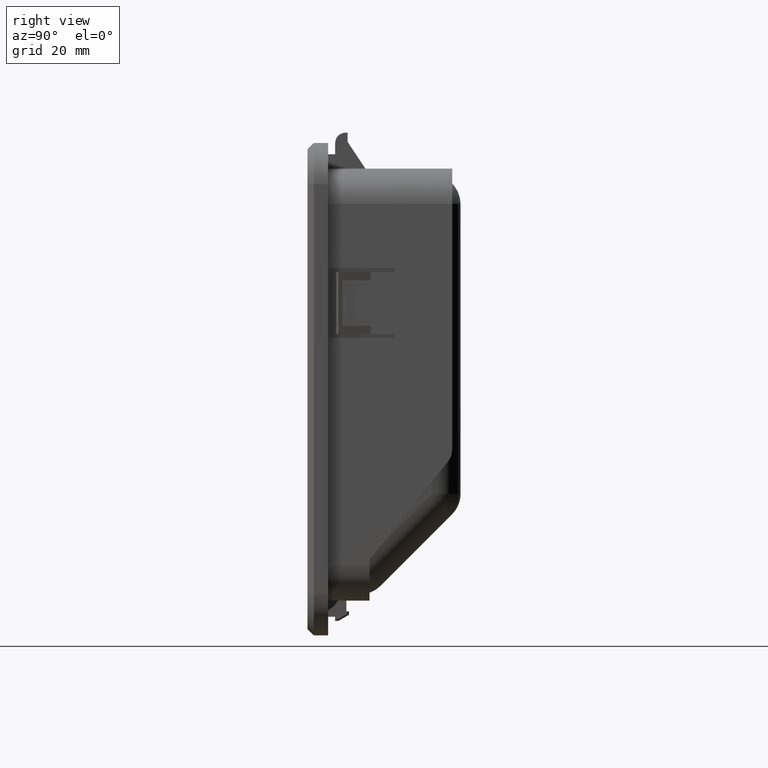
[diagram: clean part render]
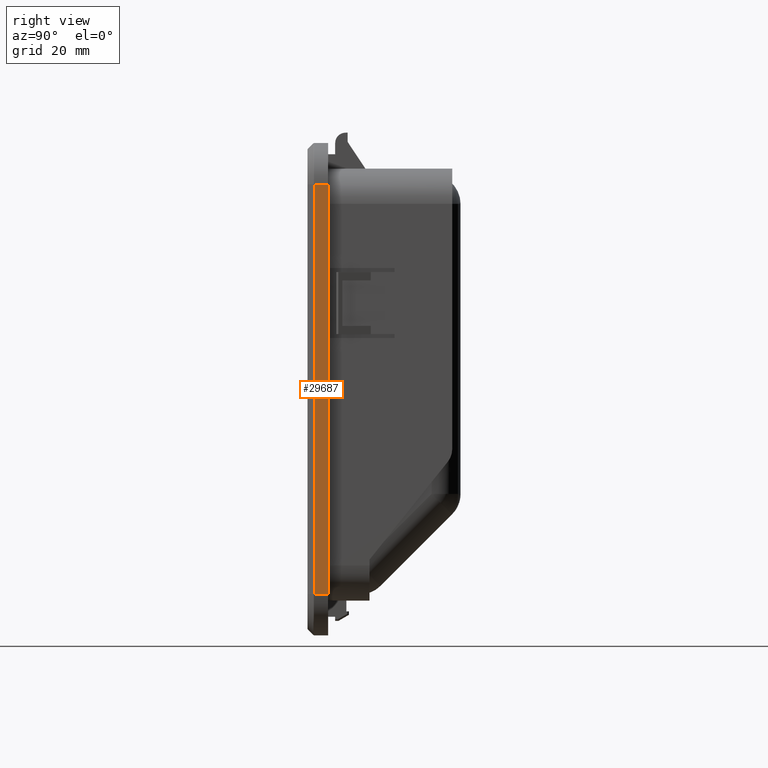
[diagram: same view with one face highlighted and labeled with its STEP entity id]
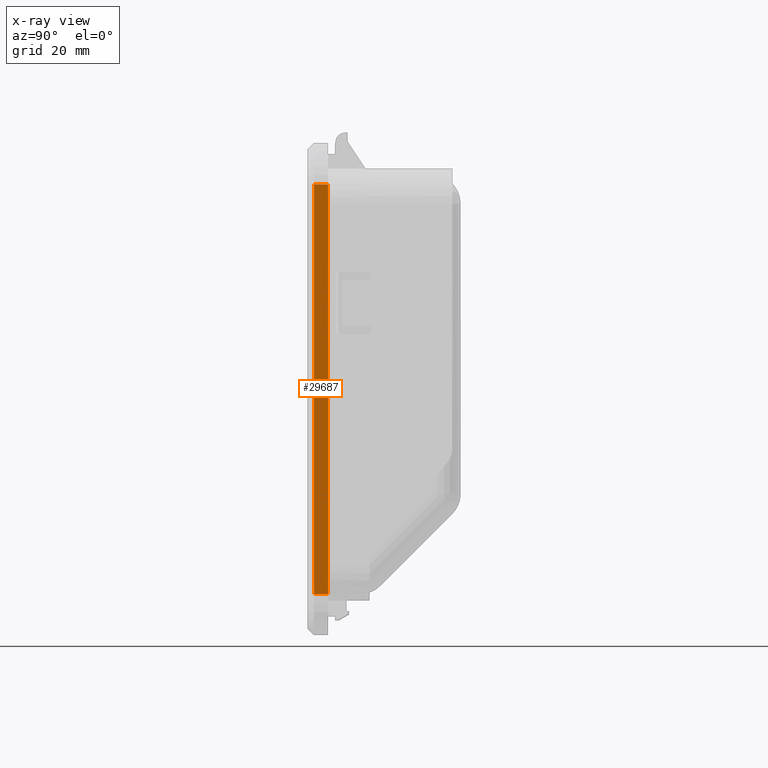
[diagram: x-ray of the same camera — body ghosted, the highlighted face saturated]
A machine part, right view. The second image highlights one B-rep face of the part: STEP entity #29687.
The next image is the same camera in x-ray: the body ghosted, the highlighted face saturated — about 0% of this face is hidden behind the body in this view.
In plain terms, the highlighted planar face has unit normal (1, 0, 0).
Its self-contained STEP definition (entity closure, byte-faithful):
#267 = VECTOR ( 'NONE', #32880, 1000.000000000000000 ) ;
#640 = DIRECTION ( 'NONE',  ( -0.0000000000000000000, -0.0000000000000000000, 1.000000000000000000 ) ) ;
#650 = VERTEX_POINT ( 'NONE', #24888 ) ;
#1031 = VECTOR ( 'NONE', #640, 1000.000000000000000 ) ;
#2228 = LINE ( 'NONE', #29573, #18440 ) ;
#5974 = ORIENTED_EDGE ( 'NONE', *, *, #13029, .F. ) ;
#6869 = CARTESIAN_POINT ( 'NONE',  ( 61.49999999990000500, 1.624264068710000300, -0.5000000000000000000 ) ) ;
#7951 = VERTEX_POINT ( 'NONE', #40925 ) ;
#8398 = ORIENTED_EDGE ( 'NONE', *, *, #16501, .F. ) ;
#8887 = LINE ( 'NONE', #12922, #267 ) ;
#9223 = AXIS2_PLACEMENT_3D ( 'NONE', #15647, #38213, #18905 ) ;
#9640 = LINE ( 'NONE', #6869, #1031 ) ;
#11395 = VECTOR ( 'NONE', #41374, 1000.000000000000000 ) ;
#12922 = CARTESIAN_POINT ( 'NONE',  ( 61.49999999990000500, 3.312132060530000600, -49.99999999989999800 ) ) ;
#13029 = EDGE_CURVE ( 'NONE', #23420, #7951, #8887, .T. ) ;
#13444 = DIRECTION ( 'NONE',  ( -0.0000000000000000000, -0.0000000000000000000, 1.000000000000000000 ) ) ;
#13495 = EDGE_CURVE ( 'NONE', #23420, #650, #2228, .T. ) ;
#14020 = CARTESIAN_POINT ( 'NONE',  ( 61.49999999989582700, 1.624264068710000300, 49.00000000150001300 ) ) ;
#15647 = CARTESIAN_POINT ( 'NONE',  ( 61.49999999990000500, 5.337573593130000100, -59.89999999999999900 ) ) ;
#16501 = EDGE_CURVE ( 'NONE', #7951, #27424, #9640, .T. ) ;
#18418 = CARTESIAN_POINT ( 'NONE',  ( 61.49999999990000500, 5.000000000000000000, -49.99999999989999800 ) ) ;
#18440 = VECTOR ( 'NONE', #13444, 1000.000000000000000 ) ;
#18771 = PLANE ( 'NONE',  #9223 ) ;
#18905 = DIRECTION ( 'NONE',  ( 0.0000000000000000000, 0.0000000000000000000, -1.000000000000000000 ) ) ;
#20527 = EDGE_LOOP ( 'NONE', ( #36309, #8398, #5974, #27930 ) ) ;
#20536 = EDGE_CURVE ( 'NONE', #27424, #650, #37138, .T. ) ;
#22029 = FACE_OUTER_BOUND ( 'NONE', #20527, .T. ) ;
#23420 = VERTEX_POINT ( 'NONE', #18418 ) ;
#24888 = CARTESIAN_POINT ( 'NONE',  ( 61.49999999990000500, 5.000000000000000000, 49.00000000149999800 ) ) ;
#27424 = VERTEX_POINT ( 'NONE', #14020 ) ;
#27930 = ORIENTED_EDGE ( 'NONE', *, *, #13495, .T. ) ;
#29573 = CARTESIAN_POINT ( 'NONE',  ( 61.49999999990000500, 5.000000000000000000, -59.89999999999999900 ) ) ;
#29687 = ADVANCED_FACE ( 'NONE', ( #22029 ), #18771, .T. ) ;
#32880 = DIRECTION ( 'NONE',  ( 0.0000000000000000000, -1.000000000000000000, -0.0000000000000000000 ) ) ;
#36309 = ORIENTED_EDGE ( 'NONE', *, *, #20536, .F. ) ;
#37138 = LINE ( 'NONE', #38092, #11395 ) ;
#38092 = CARTESIAN_POINT ( 'NONE',  ( 61.49999999990000500, 3.312132060530000600, 49.00000000149999800 ) ) ;
#38213 = DIRECTION ( 'NONE',  ( 1.000000000000000000, 0.0000000000000000000, 0.0000000000000000000 ) ) ;
#40925 = CARTESIAN_POINT ( 'NONE',  ( 61.49999999989523000, 1.624264068710000500, -49.99999999989999800 ) ) ;
#41374 = DIRECTION ( 'NONE',  ( -0.0000000000000000000, 1.000000000000000000, 0.0000000000000000000 ) ) ;